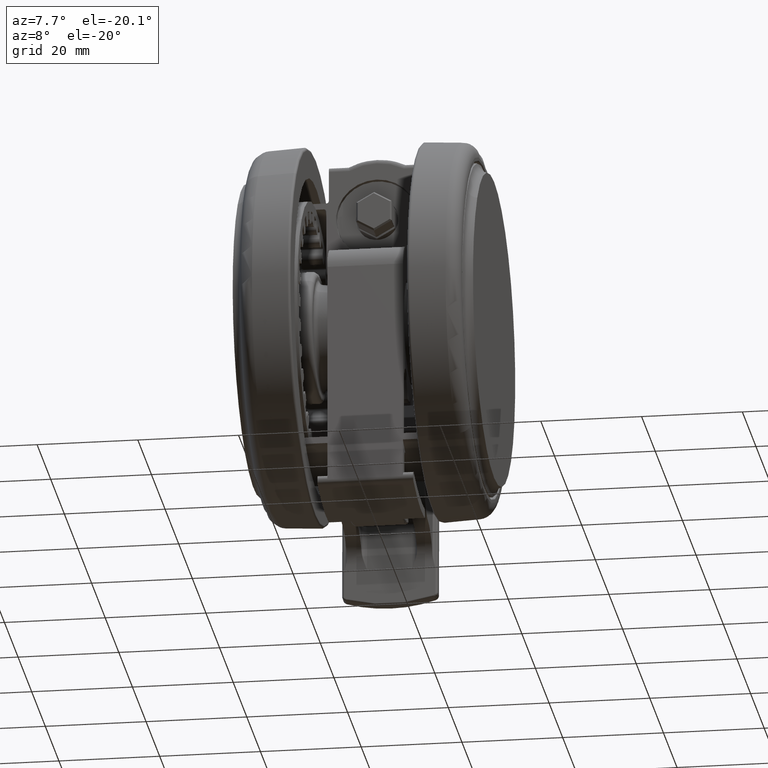
[diagram: clean part render]
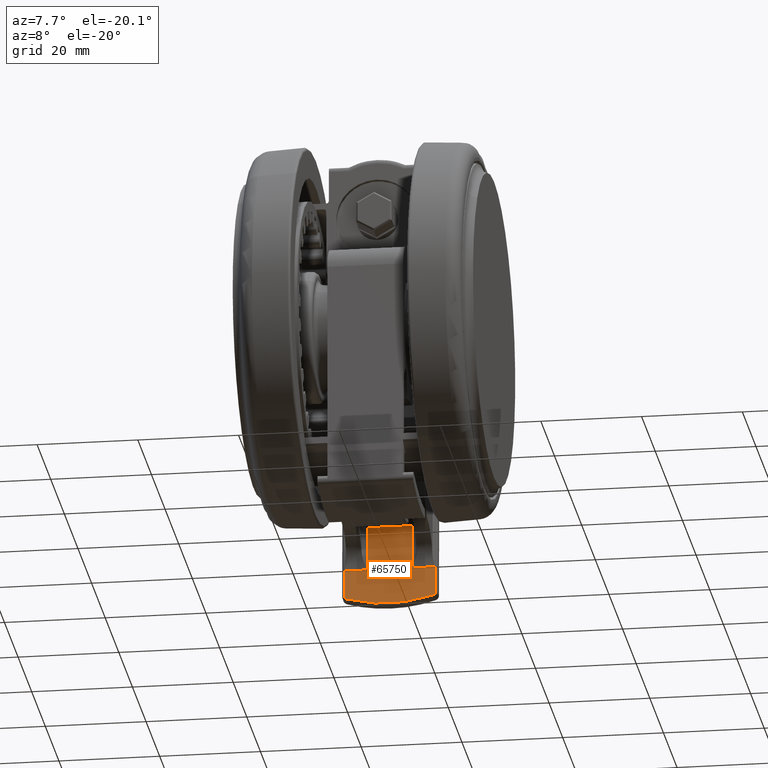
[diagram: same view with one face highlighted and labeled with its STEP entity id]
A machine part, auxiliary view. The second image highlights one B-rep face of the part: STEP entity #65750.
In plain terms, the highlighted planar face has unit normal (0, 0.9999, -0.0171).
Its self-contained STEP definition (entity closure, byte-faithful):
#240 = VERTEX_POINT ( 'NONE', #68166 ) ;
#347 = CARTESIAN_POINT ( 'NONE',  ( 29.79741703679214400, -0.2316597928787370000, -23.84999999999989100 ) ) ;
#1436 = LINE ( 'NONE', #72411, #16657 ) ;
#1749 = EDGE_LOOP ( 'NONE', ( #64283, #60404, #23977, #23643, #36900, #29396, #48946, #40893, #61462, #38017 ) ) ;
#3313 = CARTESIAN_POINT ( 'NONE',  ( 37.70875545494203600, -11.08505113695446700, -19.34999999999990500 ) ) ;
#4442 = CARTESIAN_POINT ( 'NONE',  ( 46.30304858907608400, -22.87537304967388600, -32.84999999999919900 ) ) ;
#5214 = CARTESIAN_POINT ( 'NONE',  ( 42.94192270589873300, -18.26431830283957300, -32.84999999999990900 ) ) ;
#5344 = VECTOR ( 'NONE', #69183, 1000.000000000000000 ) ;
#5469 = CARTESIAN_POINT ( 'NONE',  ( 46.41956205951297000, -23.03521531967551900, -15.15709649736549600 ) ) ;
#6100 = DIRECTION ( 'NONE',  ( -0.5890461144064431700, 0.8080994215458091600, 0.0000000000000000000 ) ) ;
#6235 = B_SPLINE_CURVE_WITH_KNOTS ( 'NONE', 3,
 ( #67954, #73672, #39589, #5469 ),
 .UNSPECIFIED., .F., .F.,
 ( 4, 4 ),
 ( 0.0000000000000000000, 1.000000000000000000 ),
 .UNSPECIFIED. ) ;
#7264 = EDGE_CURVE ( 'NONE', #50042, #13671, #20443, .T. ) ;
#8178 = CARTESIAN_POINT ( 'NONE',  ( 46.30304858907602000, -22.87537304967380400, -14.85000000000074600 ) ) ;
#9880 = CARTESIAN_POINT ( 'NONE',  ( 47.21587884554338600, -24.12766482136993000, -32.84999999999990900 ) ) ;
#10723 = LINE ( 'NONE', #63473, #5344 ) ;
#12794 = AXIS2_PLACEMENT_3D ( 'NONE', #347, #40220, #6100 ) ;
#13671 = VERTEX_POINT ( 'NONE', #18661 ) ;
#13989 = CARTESIAN_POINT ( 'NONE',  ( 46.30304858907608400, -22.87537304967388600, -32.84999999999919900 ) ) ;
#14383 = VECTOR ( 'NONE', #32301, 1000.000000000000000 ) ;
#14586 = DIRECTION ( 'NONE',  ( -0.5890461144064598200, 0.8080994215457970600, 0.0000000000000000000 ) ) ;
#16657 = VECTOR ( 'NONE', #32609, 1000.000000000000000 ) ;
#18197 = EDGE_CURVE ( 'NONE', #24986, #66333, #60548, .T. ) ;
#18661 = CARTESIAN_POINT ( 'NONE',  ( 42.94192270589873300, -18.26431830283957300, -28.34999999999990500 ) ) ;
#20130 = VERTEX_POINT ( 'NONE', #8178 ) ;
#20443 = LINE ( 'NONE', #60927, #33818 ) ;
#20829 = EDGE_CURVE ( 'NONE', #66333, #22227, #28251, .T. ) ;
#21362 = DIRECTION ( 'NONE',  ( 0.8080994215457970600, 0.5890461144064598200, 0.0000000000000000000 ) ) ;
#22227 = VERTEX_POINT ( 'NONE', #28147 ) ;
#23643 = ORIENTED_EDGE ( 'NONE', *, *, #7264, .T. ) ;
#23668 = CARTESIAN_POINT ( 'NONE',  ( 45.07890077572106000, -21.19599156210474800, -32.84999999999990900 ) ) ;
#23977 = ORIENTED_EDGE ( 'NONE', *, *, #42409, .T. ) ;
#24986 = VERTEX_POINT ( 'NONE', #66839 ) ;
#28147 = CARTESIAN_POINT ( 'NONE',  ( 37.70875545494203600, -11.08505113695446700, -19.34999999999990500 ) ) ;
#28251 = LINE ( 'NONE', #3313, #71836 ) ;
#28417 = VERTEX_POINT ( 'NONE', #45113 ) ;
#29396 = ORIENTED_EDGE ( 'NONE', *, *, #50158, .F. ) ;
#29565 = LINE ( 'NONE', #66362, #14383 ) ;
#31566 = CARTESIAN_POINT ( 'NONE',  ( 42.94192270589874000, -18.26431830283956600, -17.09999999999990500 ) ) ;
#32301 = DIRECTION ( 'NONE',  ( 0.0000000000000000000, 0.0000000000000000000, -1.000000000000000000 ) ) ;
#32609 = DIRECTION ( 'NONE',  ( 0.5890461144064598200, -0.8080994215457970600, 0.0000000000000000000 ) ) ;
#33818 = VECTOR ( 'NONE', #43768, 1000.000000000000000 ) ;
#34004 = EDGE_CURVE ( 'NONE', #20130, #28417, #6235, .T. ) ;
#36229 = FACE_OUTER_BOUND ( 'NONE', #1749, .T. ) ;
#36900 = ORIENTED_EDGE ( 'NONE', *, *, #71393, .F. ) ;
#38017 = ORIENTED_EDGE ( 'NONE', *, *, #40079, .F. ) ;
#38573 = CARTESIAN_POINT ( 'NONE',  ( 46.35653786677637100, -22.94875381445845300, -32.76820669050872700 ) ) ;
#39589 = CARTESIAN_POINT ( 'NONE',  ( 46.39813297472262100, -23.00581722910193600, -15.03900286209321600 ) ) ;
#40079 = EDGE_CURVE ( 'NONE', #24986, #20130, #1436, .T. ) ;
#40220 = DIRECTION ( 'NONE',  ( 0.8080994215458092700, 0.5890461144064432800, -6.165617534123469300E-018 ) ) ;
#40893 = ORIENTED_EDGE ( 'NONE', *, *, #61946, .F. ) ;
#41694 = EDGE_CURVE ( 'NONE', #240, #46532, #43281, .T. ) ;
#42409 = EDGE_CURVE ( 'NONE', #22227, #50042, #29565, .T. ) ;
#43281 = B_SPLINE_CURVE_WITH_KNOTS ( 'NONE', 3,
 ( #66947, #61184, #38573, #4442 ),
 .UNSPECIFIED., .F., .F.,
 ( 4, 4 ),
 ( 0.0000000000000000000, 1.000000000000000000 ),
 .UNSPECIFIED. ) ;
#43768 = DIRECTION ( 'NONE',  ( 0.5890461144064598200, -0.8080994215457970600, -0.0000000000000000000 ) ) ;
#44745 = CARTESIAN_POINT ( 'NONE',  ( 42.94192270589874000, -18.26431830283956600, -19.34999999999990500 ) ) ;
#45113 = CARTESIAN_POINT ( 'NONE',  ( 46.41956205951297000, -23.03521531967551900, -15.15709649736549600 ) ) ;
#45442 = VECTOR ( 'NONE', #71346, 1000.000000000000000 ) ;
#46532 = VERTEX_POINT ( 'NONE', #13989 ) ;
#47704 = AXIS2_PLACEMENT_3D ( 'NONE', #9880, #21362, #61125 ) ;
#48946 = ORIENTED_EDGE ( 'NONE', *, *, #41694, .F. ) ;
#49460 = PLANE ( 'NONE',  #47704 ) ;
#50042 = VERTEX_POINT ( 'NONE', #73464 ) ;
#50158 = EDGE_CURVE ( 'NONE', #46532, #65297, #51990, .T. ) ;
#51990 = LINE ( 'NONE', #23668, #53718 ) ;
#53718 = VECTOR ( 'NONE', #57733, 1000.000000000000000 ) ;
#57733 = DIRECTION ( 'NONE',  ( -0.5890461144064598200, 0.8080994215457970600, 0.0000000000000000000 ) ) ;
#60404 = ORIENTED_EDGE ( 'NONE', *, *, #20829, .T. ) ;
#60548 = LINE ( 'NONE', #31566, #45442 ) ;
#60927 = CARTESIAN_POINT ( 'NONE',  ( 47.21587884554338600, -24.12766482136993000, -28.34999999999990500 ) ) ;
#61125 = DIRECTION ( 'NONE',  ( -0.5890461144064598200, 0.8080994215457970600, 0.0000000000000000000 ) ) ;
#61184 = CARTESIAN_POINT ( 'NONE',  ( 46.39804752054513400, -23.00569999639347800, -32.66146810874399600 ) ) ;
#61462 = ORIENTED_EDGE ( 'NONE', *, *, #34004, .F. ) ;
#61946 = EDGE_CURVE ( 'NONE', #28417, #240, #64677, .T. ) ;
#63473 = CARTESIAN_POINT ( 'NONE',  ( 42.94192270589873300, -18.26431830283957300, -23.84999999999990900 ) ) ;
#64283 = ORIENTED_EDGE ( 'NONE', *, *, #18197, .T. ) ;
#64677 = CIRCLE ( 'NONE', #12794, 29.52735039122020700 ) ;
#65297 = VERTEX_POINT ( 'NONE', #5214 ) ;
#65750 = ADVANCED_FACE ( 'NONE', ( #36229 ), #49460, .F. ) ;
#66333 = VERTEX_POINT ( 'NONE', #44745 ) ;
#66362 = CARTESIAN_POINT ( 'NONE',  ( 37.70875545494203600, -11.08505113695446700, -29.34999999999990500 ) ) ;
#66839 = CARTESIAN_POINT ( 'NONE',  ( 42.94192270589873300, -18.26431830283957300, -14.84999999999990700 ) ) ;
#66947 = CARTESIAN_POINT ( 'NONE',  ( 46.41956205951014900, -23.03521531967165700, -32.54290350263463000 ) ) ;
#67954 = CARTESIAN_POINT ( 'NONE',  ( 46.30304858907602000, -22.87537304967380400, -14.85000000000074600 ) ) ;
#68166 = CARTESIAN_POINT ( 'NONE',  ( 46.41956205951014900, -23.03521531967165700, -32.54290350263463000 ) ) ;
#69183 = DIRECTION ( 'NONE',  ( 0.0000000000000000000, 0.0000000000000000000, 1.000000000000000000 ) ) ;
#71346 = DIRECTION ( 'NONE',  ( 0.0000000000000000000, 0.0000000000000000000, -1.000000000000000000 ) ) ;
#71393 = EDGE_CURVE ( 'NONE', #65297, #13671, #10723, .T. ) ;
#71836 = VECTOR ( 'NONE', #14586, 1000.000000000000000 ) ;
#72411 = CARTESIAN_POINT ( 'NONE',  ( 45.07890077572106000, -21.19599156210474800, -14.84999999999990700 ) ) ;
#73464 = CARTESIAN_POINT ( 'NONE',  ( 37.70875545494203600, -11.08505113695446700, -28.34999999999990500 ) ) ;
#73672 = CARTESIAN_POINT ( 'NONE',  ( 46.35702087809386300, -22.94941644707190100, -14.93253189174289700 ) ) ;